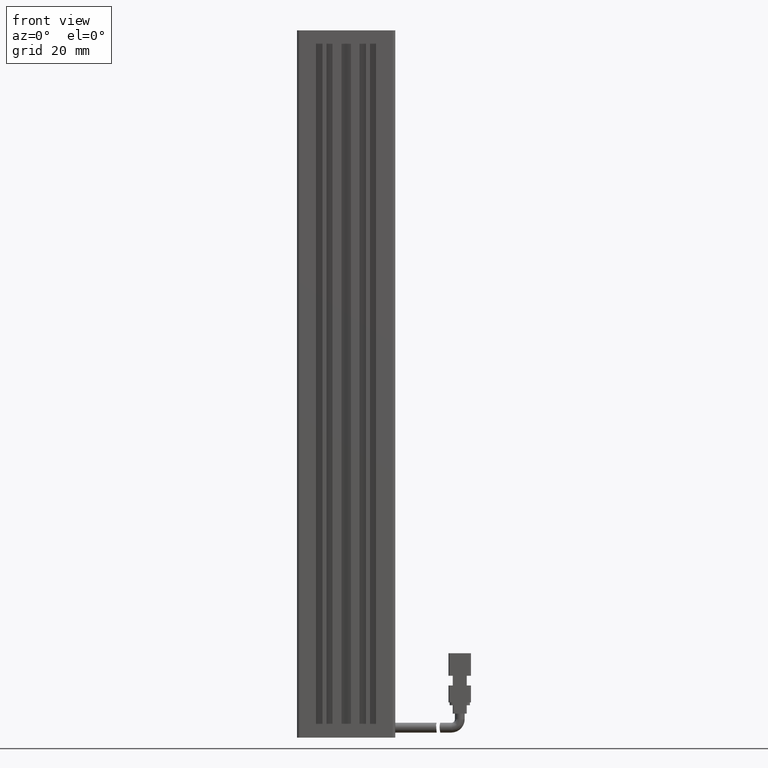
[diagram: clean part render]
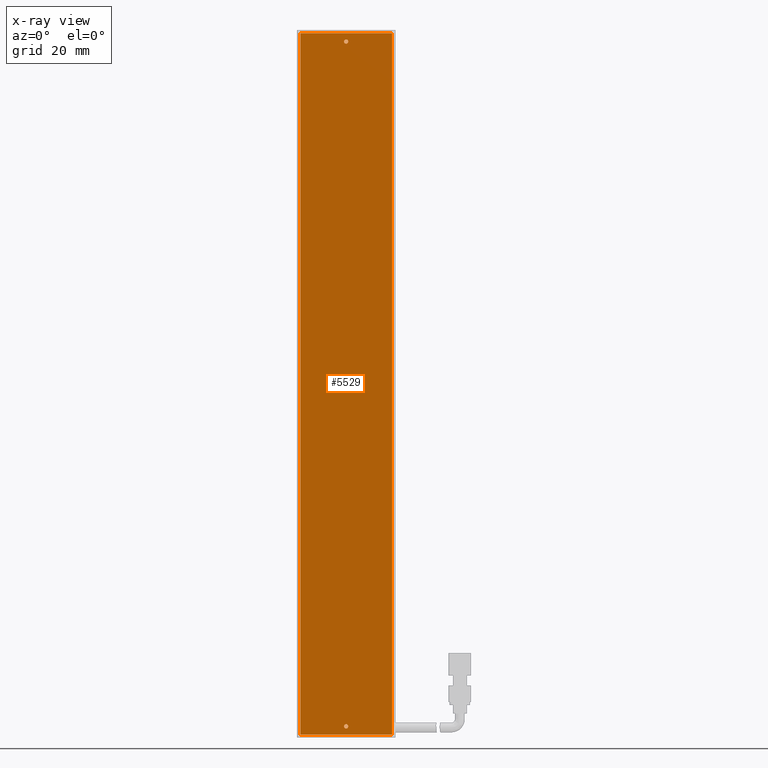
[diagram: x-ray — body ghosted, one internal face saturated and labeled with its STEP entity id]
A machine part, front view, then the same camera in x-ray: the body is ghosted and one INTERNAL B-rep face — a face not visible from any outside direction — is saturated and labeled: STEP entity #5529.
In plain terms, the highlighted planar face has unit normal (0, 1, 0).
Its self-contained STEP definition (entity closure, byte-faithful):
#5529 = ADVANCED_FACE ( 'NONE', ( #86701, #55229, #65666 ), #88509, .F. ) ;
#6994 = CARTESIAN_POINT ( 'NONE',  ( 24.57537974683543800, 32.09073232304837800, -240.0000000000001400 ) ) ;
#7031 = CARTESIAN_POINT ( 'NONE',  ( 41.67537974683543200, 32.09073232304837800, 7.000000000000089700 ) ) ;
#8140 = DIRECTION ( 'NONE',  ( -1.000000000000000000, 1.639141018151397500E-031, -1.387778780781445400E-016 ) ) ;
#8422 = VECTOR ( 'NONE', #91295, 1000.000000000000000 ) ;
#8424 = DIRECTION ( 'NONE',  ( -1.639141018151397500E-031, -1.000000000000000000, -2.274765123699003500E-047 ) ) ;
#10040 = CARTESIAN_POINT ( 'NONE',  ( 40.17537974683543200, 32.09073232304837800, 7.000000000000089700 ) ) ;
#10242 = DIRECTION ( 'NONE',  ( -1.000000000000000000, 1.639141018151397500E-031, -1.387778780781445400E-016 ) ) ;
#11357 = EDGE_CURVE ( 'NONE', #64220, #63063, #48428, .T. ) ;
#13413 = CARTESIAN_POINT ( 'NONE',  ( 24.57537974683542700, 32.09073232304837800, 10.00000000000009100 ) ) ;
#15299 = ORIENTED_EDGE ( 'NONE', *, *, #47337, .F. ) ;
#15877 = DIRECTION ( 'NONE',  ( -1.000000000000000000, 0.0000000000000000000, 0.0000000000000000000 ) ) ;
#19011 = CARTESIAN_POINT ( 'NONE',  ( 24.57537974683539900, 32.09073232304837800, 10.00000000000009200 ) ) ;
#19505 = CIRCLE ( 'NONE', #68848, 0.7500000000000006700 ) ;
#20715 = EDGE_CURVE ( 'NONE', #53889, #49855, #32082, .T. ) ;
#22997 = ORIENTED_EDGE ( 'NONE', *, *, #25173, .F. ) ;
#25173 = EDGE_CURVE ( 'NONE', #63063, #64220, #58644, .T. ) ;
#26098 = CARTESIAN_POINT ( 'NONE',  ( 40.17537974683545300, 32.09073232304837800, -237.0000000000001100 ) ) ;
#28227 = EDGE_LOOP ( 'NONE', ( #30744, #22997 ) ) ;
#29585 = AXIS2_PLACEMENT_3D ( 'NONE', #44675, #8424, #15877 ) ;
#30744 = ORIENTED_EDGE ( 'NONE', *, *, #11357, .F. ) ;
#31227 = CARTESIAN_POINT ( 'NONE',  ( 57.27537974683546200, 32.09073232304837800, 10.00000000000009800 ) ) ;
#32082 = LINE ( 'NONE', #36334, #59078 ) ;
#34081 = EDGE_CURVE ( 'NONE', #49615, #73416, #87409, .T. ) ;
#34092 = DIRECTION ( 'NONE',  ( -1.000000000000000000, 0.0000000000000000000, 0.0000000000000000000 ) ) ;
#35200 = AXIS2_PLACEMENT_3D ( 'NONE', #91576, #42259, #34092 ) ;
#35399 = ORIENTED_EDGE ( 'NONE', *, *, #20715, .F. ) ;
#36334 = CARTESIAN_POINT ( 'NONE',  ( 57.27537974683546200, 32.09073232304837800, 10.00000000000009800 ) ) ;
#37209 = CARTESIAN_POINT ( 'NONE',  ( 57.27537974683546200, 32.09073232304837800, 10.00000000000009800 ) ) ;
#39022 = VERTEX_POINT ( 'NONE', #61893 ) ;
#39065 = DIRECTION ( 'NONE',  ( -1.000000000000000000, 0.0000000000000000000, 0.0000000000000000000 ) ) ;
#39707 = CARTESIAN_POINT ( 'NONE',  ( 40.92537974683545300, 32.09073232304837800, -237.0000000000001100 ) ) ;
#42259 = DIRECTION ( 'NONE',  ( -1.639141018151397500E-031, -1.000000000000000000, -2.274765123699003500E-047 ) ) ;
#44675 = CARTESIAN_POINT ( 'NONE',  ( 40.92537974683543200, 32.09073232304837800, 7.000000000000089700 ) ) ;
#44956 = LINE ( 'NONE', #19011, #64842 ) ;
#45607 = EDGE_CURVE ( 'NONE', #73416, #49615, #19505, .T. ) ;
#46489 = DIRECTION ( 'NONE',  ( -1.000000000000000000, 0.0000000000000000000, 0.0000000000000000000 ) ) ;
#46931 = DIRECTION ( 'NONE',  ( -1.639141018151397500E-031, -1.000000000000000000, -2.274765123699003500E-047 ) ) ;
#46936 = LINE ( 'NONE', #31227, #8422 ) ;
#47337 = EDGE_CURVE ( 'NONE', #39022, #48996, #69169, .T. ) ;
#48428 = CIRCLE ( 'NONE', #29585, 0.7500000000000006700 ) ;
#48996 = VERTEX_POINT ( 'NONE', #6994 ) ;
#49615 = VERTEX_POINT ( 'NONE', #26098 ) ;
#49855 = VERTEX_POINT ( 'NONE', #69735 ) ;
#52444 = EDGE_CURVE ( 'NONE', #48996, #53889, #44956, .T. ) ;
#53741 = CARTESIAN_POINT ( 'NONE',  ( 40.92537974683545300, 32.09073232304837800, -237.0000000000001100 ) ) ;
#53889 = VERTEX_POINT ( 'NONE', #13413 ) ;
#54389 = DIRECTION ( 'NONE',  ( -1.639141018151397500E-031, -1.000000000000000000, -2.274765123699003500E-047 ) ) ;
#54464 = AXIS2_PLACEMENT_3D ( 'NONE', #37209, #82247, #8140 ) ;
#54967 = CARTESIAN_POINT ( 'NONE',  ( 41.67537974683545300, 32.09073232304837800, -237.0000000000001100 ) ) ;
#55229 = FACE_BOUND ( 'NONE', #28227, .T. ) ;
#58099 = EDGE_CURVE ( 'NONE', #49855, #39022, #46936, .T. ) ;
#58644 = CIRCLE ( 'NONE', #35200, 0.7500000000000006700 ) ;
#59078 = VECTOR ( 'NONE', #95414, 1000.000000000000000 ) ;
#61893 = CARTESIAN_POINT ( 'NONE',  ( 57.27537974683547600, 32.09073232304837800, -240.0000000000001400 ) ) ;
#63063 = VERTEX_POINT ( 'NONE', #7031 ) ;
#64220 = VERTEX_POINT ( 'NONE', #10040 ) ;
#64431 = AXIS2_PLACEMENT_3D ( 'NONE', #39707, #46931, #39065 ) ;
#64842 = VECTOR ( 'NONE', #94802, 1000.000000000000000 ) ;
#65666 = FACE_BOUND ( 'NONE', #78206, .T. ) ;
#68848 = AXIS2_PLACEMENT_3D ( 'NONE', #53741, #54389, #46489 ) ;
#69169 = LINE ( 'NONE', #85650, #80903 ) ;
#69735 = CARTESIAN_POINT ( 'NONE',  ( 57.27537974683546200, 32.09073232304837800, 10.00000000000009600 ) ) ;
#73416 = VERTEX_POINT ( 'NONE', #54967 ) ;
#78206 = EDGE_LOOP ( 'NONE', ( #86679, #86959 ) ) ;
#80903 = VECTOR ( 'NONE', #10242, 1000.000000000000000 ) ;
#82247 = DIRECTION ( 'NONE',  ( 1.639141018151397500E-031, 1.000000000000000000, 2.274765123699003500E-047 ) ) ;
#85650 = CARTESIAN_POINT ( 'NONE',  ( 57.27537974683549700, 32.09073232304837800, -240.0000000000001400 ) ) ;
#86679 = ORIENTED_EDGE ( 'NONE', *, *, #34081, .F. ) ;
#86701 = FACE_OUTER_BOUND ( 'NONE', #94775, .T. ) ;
#86959 = ORIENTED_EDGE ( 'NONE', *, *, #45607, .F. ) ;
#87409 = CIRCLE ( 'NONE', #64431, 0.7500000000000006700 ) ;
#88509 = PLANE ( 'NONE',  #54464 ) ;
#88859 = ORIENTED_EDGE ( 'NONE', *, *, #58099, .F. ) ;
#91295 = DIRECTION ( 'NONE',  ( 1.387778780781445400E-016, -0.0000000000000000000, -1.000000000000000000 ) ) ;
#91576 = CARTESIAN_POINT ( 'NONE',  ( 40.92537974683543200, 32.09073232304837800, 7.000000000000089700 ) ) ;
#94775 = EDGE_LOOP ( 'NONE', ( #95538, #15299, #88859, #35399 ) ) ;
#94802 = DIRECTION ( 'NONE',  ( -1.387778780781445400E-016, 0.0000000000000000000, 1.000000000000000000 ) ) ;
#95414 = DIRECTION ( 'NONE',  ( 1.000000000000000000, -1.639141018151397500E-031, 1.387778780781445400E-016 ) ) ;
#95538 = ORIENTED_EDGE ( 'NONE', *, *, #52444, .F. ) ;